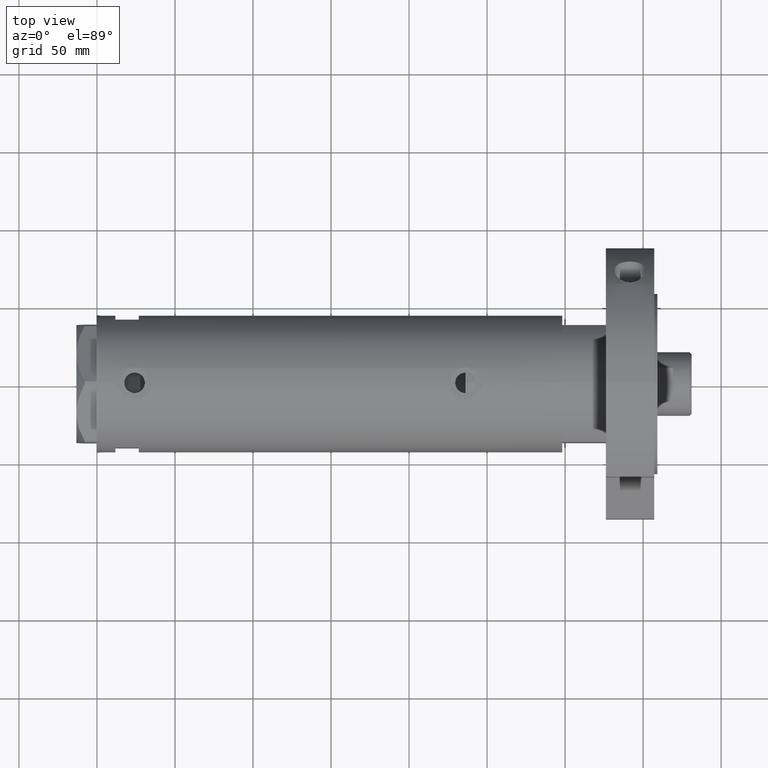
[diagram: clean part render]
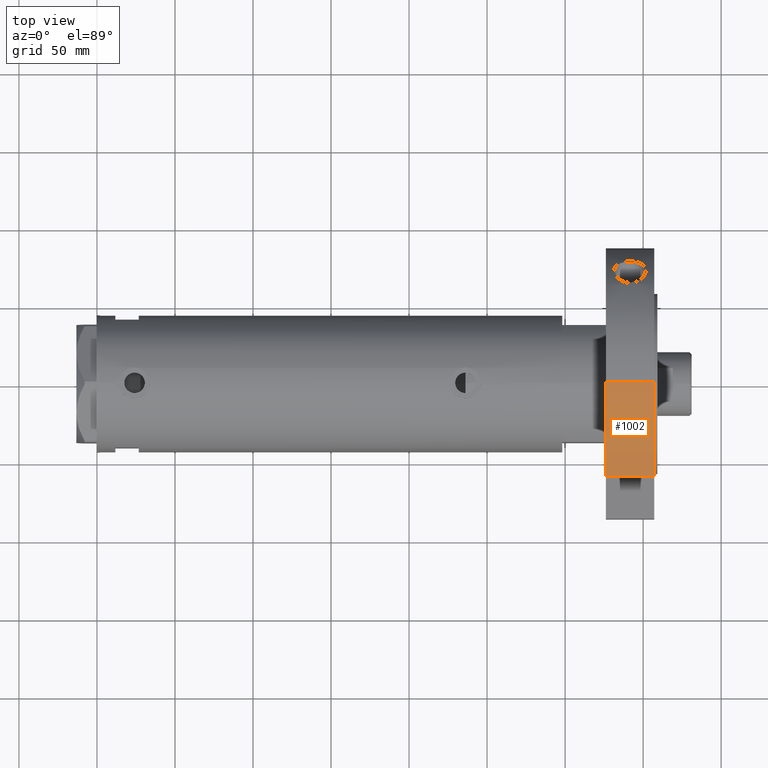
[diagram: same view with one face highlighted and labeled with its STEP entity id]
A machine part, top view. The second image highlights one B-rep face of the part: STEP entity #1002.
In plain terms, the highlighted cylindrical surface (partial cylindrical patch) has radius 87 mm, axis along (-1, -0, 0).
Its self-contained STEP definition (entity closure, byte-faithful):
#60 = LINE ( 'NONE', #4088, #7478 ) ;
#126 = EDGE_LOOP ( 'NONE', ( #3604, #5003, #2874, #4475 ) ) ;
#185 = CIRCLE ( 'NONE', #2516, 87.00000000000000000 ) ;
#439 = VECTOR ( 'NONE', #3566, 1000.000000000000000 ) ;
#537 = VERTEX_POINT ( 'NONE', #1013 ) ;
#659 = AXIS2_PLACEMENT_3D ( 'NONE', #5115, #6258, #6862 ) ;
#812 = EDGE_CURVE ( 'NONE', #537, #3459, #60, .T. ) ;
#1002 = ADVANCED_FACE ( 'NONE', ( #2780 ), #5008, .T. ) ;
#1013 = CARTESIAN_POINT ( 'NONE',  ( 87.00000000000000000, 1.065442715258197209E-14, 31.00000000000000000 ) ) ;
#2054 = EDGE_CURVE ( 'NONE', #537, #7083, #185, .T. ) ;
#2204 = DIRECTION ( 'NONE',  ( 1.000000000000000000, 0.000000000000000000, 0.000000000000000000 ) ) ;
#2352 = CARTESIAN_POINT ( 'NONE',  ( 87.00000000000000000, 1.065442715258197209E-14, 0.000000000000000000 ) ) ;
#2516 = AXIS2_PLACEMENT_3D ( 'NONE', #5041, #4504, #2204 ) ;
#2743 = EDGE_CURVE ( 'NONE', #2853, #7083, #4792, .T. ) ;
#2780 = FACE_OUTER_BOUND ( 'NONE', #126, .T. ) ;
#2853 = VERTEX_POINT ( 'NONE', #4944 ) ;
#2874 = ORIENTED_EDGE ( 'NONE', *, *, #4383, .T. ) ;
#3097 = DIRECTION ( 'NONE',  ( 1.000000000000000000, 0.000000000000000000, 0.000000000000000000 ) ) ;
#3459 = VERTEX_POINT ( 'NONE', #2352 ) ;
#3566 = DIRECTION ( 'NONE',  ( -0.000000000000000000, -0.000000000000000000, 1.000000000000000000 ) ) ;
#3604 = ORIENTED_EDGE ( 'NONE', *, *, #2054, .F. ) ;
#3625 = CIRCLE ( 'NONE', #4601, 87.00000000000000000 ) ;
#4088 = CARTESIAN_POINT ( 'NONE',  ( 87.00000000000000000, 1.065442715258197209E-14, 31.00000000000000000 ) ) ;
#4174 = DIRECTION ( 'NONE',  ( 0.000000000000000000, 0.000000000000000000, 1.000000000000000000 ) ) ;
#4383 = EDGE_CURVE ( 'NONE', #3459, #2853, #3625, .T. ) ;
#4475 = ORIENTED_EDGE ( 'NONE', *, *, #2743, .T. ) ;
#4504 = DIRECTION ( 'NONE',  ( 0.000000000000000000, 0.000000000000000000, 1.000000000000000000 ) ) ;
#4513 = CARTESIAN_POINT ( 'NONE',  ( 0.000000000000000000, 0.000000000000000000, 0.000000000000000000 ) ) ;
#4601 = AXIS2_PLACEMENT_3D ( 'NONE', #4513, #4174, #3097 ) ;
#4792 = LINE ( 'NONE', #7108, #439 ) ;
#4944 = CARTESIAN_POINT ( 'NONE',  ( 62.54236590573034249, 60.47687547247904405, 0.000000000000000000 ) ) ;
#5003 = ORIENTED_EDGE ( 'NONE', *, *, #812, .T. ) ;
#5008 = CYLINDRICAL_SURFACE ( 'NONE', #659, 87.00000000000000000 ) ;
#5041 = CARTESIAN_POINT ( 'NONE',  ( 0.000000000000000000, 0.000000000000000000, 31.00000000000000000 ) ) ;
#5115 = CARTESIAN_POINT ( 'NONE',  ( 0.000000000000000000, 0.000000000000000000, 31.00000000000000000 ) ) ;
#6258 = DIRECTION ( 'NONE',  ( -0.000000000000000000, -0.000000000000000000, -1.000000000000000000 ) ) ;
#6411 = DIRECTION ( 'NONE',  ( -0.000000000000000000, -0.000000000000000000, -1.000000000000000000 ) ) ;
#6862 = DIRECTION ( 'NONE',  ( -1.000000000000000000, 0.000000000000000000, 0.000000000000000000 ) ) ;
#7050 = CARTESIAN_POINT ( 'NONE',  ( 62.54236590573034249, 60.47687547247904405, 31.00000000000000000 ) ) ;
#7083 = VERTEX_POINT ( 'NONE', #7050 ) ;
#7108 = CARTESIAN_POINT ( 'NONE',  ( 62.54236590573034249, 60.47687547247904405, 0.000000000000000000 ) ) ;
#7478 = VECTOR ( 'NONE', #6411, 1000.000000000000000 ) ;